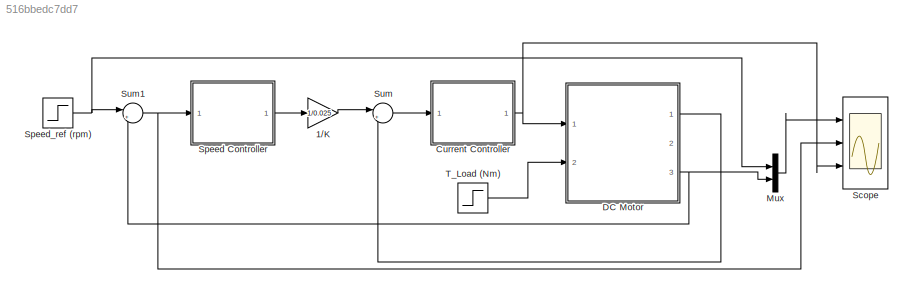
MODEL slx_516bbedc7dd7
KIND model
CONFIG AbsTol = auto
CONFIG EnableMultiTasking = off
CONFIG FixedStep = auto
CONFIG MaxStep = auto
CONFIG MinStep = auto
CONFIG RelTol = 1e-3
CONFIG SampleTimeConstraint = Unconstrained
CONFIG Solver = VariableStepAuto
CONFIG SolverName = VariableStepAuto
CONFIG StartTime = 0.0
CONFIG StopTime = 20
BLOCK [Gain] 1//K
  Gain = 1/0.025
  OutDataTypeStr = Inherit: Inherit via internal rule
  ParamDataTypeStr = Inherit: Inherit via internal rule
  SaturateOnIntegerOverflow = off
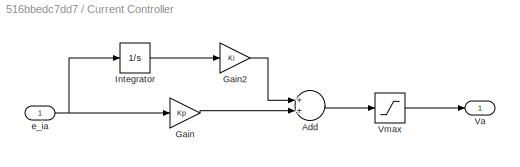
BLOCK [SubSystem] Current Controller
  Ports = [1, 1]
  RequestExecContextInheritance = off
  Variant = off
BLOCK [Sum] Current Controller/Add
  InputSameDT = off
  OutDataTypeStr = Inherit: Inherit via internal rule
  Ports = [2, 1]
  SaturateOnIntegerOverflow = off
BLOCK [Gain] Current Controller/Gain
  Gain = Kp
  OutDataTypeStr = Inherit: Inherit via internal rule
  ParamDataTypeStr = Inherit: Inherit via internal rule
  SaturateOnIntegerOverflow = off
BLOCK [Gain] Current Controller/Gain2
  Gain = Ki
  OutDataTypeStr = Inherit: Inherit via internal rule
  ParamDataTypeStr = Inherit: Inherit via internal rule
  SaturateOnIntegerOverflow = off
BLOCK [Integrator] Current Controller/Integrator
  Ports = [1, 1]
BLOCK [Outport] Current Controller/Va 
  IconDisplay = Port number
BLOCK [Saturate] Current Controller/Vmax
  InputPortMap = u0
  LowerLimit = -Vmax
  Ports = [1, 1]
  UpperLimit = Vmax
BLOCK [Inport] Current Controller/e_ia
  IconDisplay = Port number
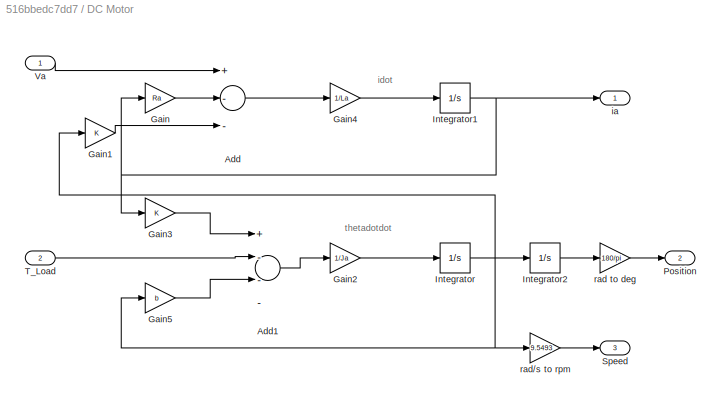
BLOCK [SubSystem] DC Motor
  Ports = [2, 3]
  RequestExecContextInheritance = off
  Variant = off
BLOCK [Sum] DC Motor/Add
  InputSameDT = off
  Inputs = +--
  OutDataTypeStr = Inherit: Inherit via internal rule
  Ports = [3, 1]
  SaturateOnIntegerOverflow = off
BLOCK [Sum] DC Motor/Add1
  InputSameDT = off
  Inputs = +---
  OutDataTypeStr = Inherit: Inherit via internal rule
  Ports = [4, 1]
  SaturateOnIntegerOverflow = off
BLOCK [Gain] DC Motor/Gain
  Gain = Ra
  OutDataTypeStr = Inherit: Inherit via internal rule
  ParamDataTypeStr = Inherit: Inherit via internal rule
  SaturateOnIntegerOverflow = off
BLOCK [Gain] DC Motor/Gain1
  Gain = K
  OutDataTypeStr = Inherit: Inherit via internal rule
  ParamDataTypeStr = Inherit: Inherit via internal rule
  SaturateOnIntegerOverflow = off
BLOCK [Gain] DC Motor/Gain2
  Gain = 1/Ja
  OutDataTypeStr = Inherit: Inherit via internal rule
  ParamDataTypeStr = Inherit: Inherit via internal rule
  SaturateOnIntegerOverflow = off
BLOCK [Gain] DC Motor/Gain3
  Gain = K
  OutDataTypeStr = Inherit: Inherit via internal rule
  ParamDataTypeStr = Inherit: Inherit via internal rule
  SaturateOnIntegerOverflow = off
BLOCK [Gain] DC Motor/Gain4
  Gain = 1/La
  OutDataTypeStr = Inherit: Inherit via internal rule
  ParamDataTypeStr = Inherit: Inherit via internal rule
  SaturateOnIntegerOverflow = off
BLOCK [Gain] DC Motor/Gain5
  Gain = b
  OutDataTypeStr = Inherit: Inherit via internal rule
  ParamDataTypeStr = Inherit: Inherit via internal rule
  SaturateOnIntegerOverflow = off
BLOCK [Integrator] DC Motor/Integrator
  Ports = [1, 1]
BLOCK [Integrator] DC Motor/Integrator1
  Ports = [1, 1]
BLOCK [Integrator] DC Motor/Integrator2
  Ports = [1, 1]
BLOCK [Outport] DC Motor/Position
  IconDisplay = Port number
  Port = 2
BLOCK [Outport] DC Motor/Speed 
  IconDisplay = Port number
  Port = 3
BLOCK [Inport] DC Motor/T_Load
  IconDisplay = Port number
  Port = 2
BLOCK [Inport] DC Motor/Va 
  IconDisplay = Port number
BLOCK [Outport] DC Motor/ia
  IconDisplay = Port number
BLOCK [Gain] DC Motor/rad to deg
  Gain = 180/pi
  OutDataTypeStr = Inherit: Inherit via internal rule
  ParamDataTypeStr = Inherit: Inherit via internal rule
  SaturateOnIntegerOverflow = off
BLOCK [Gain] DC Motor/rad//s to rpm
  Gain = 9.5493
  OutDataTypeStr = Inherit: Inherit via internal rule
  ParamDataTypeStr = Inherit: Inherit via internal rule
  SaturateOnIntegerOverflow = off
BLOCK [Mux] Mux
  DisplayOption = bar
  Inputs = 2
  Ports = [2, 1]
BLOCK [Scope] Scope
  NumInputPorts = 3
  Ports = [3]
  ScopeSpecificationString = Simulink.scopes.TimeScopeBlockCfg('CurrentConfiguration', extmgr.ConfigurationSet(extmgr.Configuration('Core','General UI',true,'FigureColor',[1 1 1]),extmgr.Configuration('Core','Source UI',true),extmgr.Configuration('Sources','WiredSimulink',true,'DataLoggingDecimateData',true),extmgr.Configuration('Visuals','Time Domain',true,'PlotType','Line','SerializedDisplays',{struct('MinYLimReal','-375.97...<+3452ch>
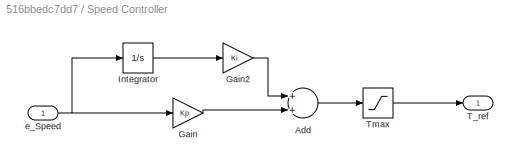
BLOCK [SubSystem] Speed Controller
  Ports = [1, 1]
  RequestExecContextInheritance = off
  Variant = off
BLOCK [Sum] Speed Controller/Add
  InputSameDT = off
  OutDataTypeStr = Inherit: Inherit via internal rule
  Ports = [2, 1]
  SaturateOnIntegerOverflow = off
BLOCK [Gain] Speed Controller/Gain
  Gain = Kp
  OutDataTypeStr = Inherit: Inherit via internal rule
  ParamDataTypeStr = Inherit: Inherit via internal rule
  SaturateOnIntegerOverflow = off
BLOCK [Gain] Speed Controller/Gain2
  Gain = Ki
  OutDataTypeStr = Inherit: Inherit via internal rule
  ParamDataTypeStr = Inherit: Inherit via internal rule
  SaturateOnIntegerOverflow = off
BLOCK [Integrator] Speed Controller/Integrator
  Ports = [1, 1]
BLOCK [Outport] Speed Controller/T_ref 
  IconDisplay = Port number
BLOCK [Saturate] Speed Controller/Tmax
  InputPortMap = u0
  LowerLimit = -Tmax
  Ports = [1, 1]
  UpperLimit = Tmax
BLOCK [Inport] Speed Controller/e_Speed
  IconDisplay = Port number
BLOCK [Step] Speed_ref (rpm)
  After = 3000
  SampleTime = 0
  Time = 2.2
BLOCK [Sum] Sum
  IconShape = round
  InputSameDT = off
  Inputs = |+-
  OutDataTypeStr = Inherit: Inherit via internal rule
  Ports = [2, 1]
  SaturateOnIntegerOverflow = off
BLOCK [Sum] Sum1
  IconShape = round
  InputSameDT = off
  Inputs = |+-
  OutDataTypeStr = Inherit: Inherit via internal rule
  Ports = [2, 1]
  SaturateOnIntegerOverflow = off
BLOCK [Step] T_Load (Nm)
  After = 0.5
  SampleTime = 0
  Time = 12
ANNOTATION DC Motor: idot
ANNOTATION DC Motor: thetadotdot
LINE 1//K:1 -> Sum:1
LINE Current Controller/Add:1 -> Current Controller/Vmax:1
LINE Current Controller/Gain2:1 -> Current Controller/Add:1
LINE Current Controller/Gain:1 -> Current Controller/Add:2
LINE Current Controller/Integrator:1 -> Current Controller/Gain2:1
LINE Current Controller/Vmax:1 -> Current Controller/Va :1
NET Current Controller/e_ia:1 -> Current Controller/Gain:1, Current Controller/Integrator:1
NET Current Controller:1 -> DC Motor:1, Scope:3
LINE DC Motor/Add1:1 -> DC Motor/Gain2:1
LINE DC Motor/Add:1 -> DC Motor/Gain4:1
LINE DC Motor/Gain1:1 -> DC Motor/Add:3
LINE DC Motor/Gain2:1 -> DC Motor/Integrator:1
LINE DC Motor/Gain3:1 -> DC Motor/Add1:1
LINE DC Motor/Gain4:1 -> DC Motor/Integrator1:1
LINE DC Motor/Gain5:1 -> DC Motor/Add1:3
LINE DC Motor/Gain:1 -> DC Motor/Add:2
NET DC Motor/Integrator1:1 -> DC Motor/Gain3:1, DC Motor/Gain:1, DC Motor/ia:1
LINE DC Motor/Integrator2:1 -> DC Motor/rad to deg:1
NET DC Motor/Integrator:1 -> DC Motor/Gain1:1, DC Motor/Gain5:1, DC Motor/Integrator2:1, DC Motor/rad//s to rpm:1
LINE DC Motor/T_Load:1 -> DC Motor/Add1:2
LINE DC Motor/Va :1 -> DC Motor/Add:1
LINE DC Motor/rad to deg:1 -> DC Motor/Position:1
LINE DC Motor/rad//s to rpm:1 -> DC Motor/Speed :1
LINE DC Motor:1 -> Sum:2
NET DC Motor:3 -> Mux:2, Sum1:2
LINE Mux:1 -> Scope:1
LINE Speed Controller/Add:1 -> Speed Controller/Tmax:1
LINE Speed Controller/Gain2:1 -> Speed Controller/Add:1
LINE Speed Controller/Gain:1 -> Speed Controller/Add:2
LINE Speed Controller/Integrator:1 -> Speed Controller/Gain2:1
LINE Speed Controller/Tmax:1 -> Speed Controller/T_ref :1
NET Speed Controller/e_Speed:1 -> Speed Controller/Gain:1, Speed Controller/Integrator:1
LINE Speed Controller:1 -> 1//K:1
NET Speed_ref (rpm):1 -> Mux:1, Sum1:1
NET Sum1:1 -> Scope:2, Speed Controller:1
LINE Sum:1 -> Current Controller:1
LINE T_Load (Nm):1 -> DC Motor:2
note: NET lines group one-source signal fan-out (src -> all destinations, sorted); 1:1 wires keep LINE
